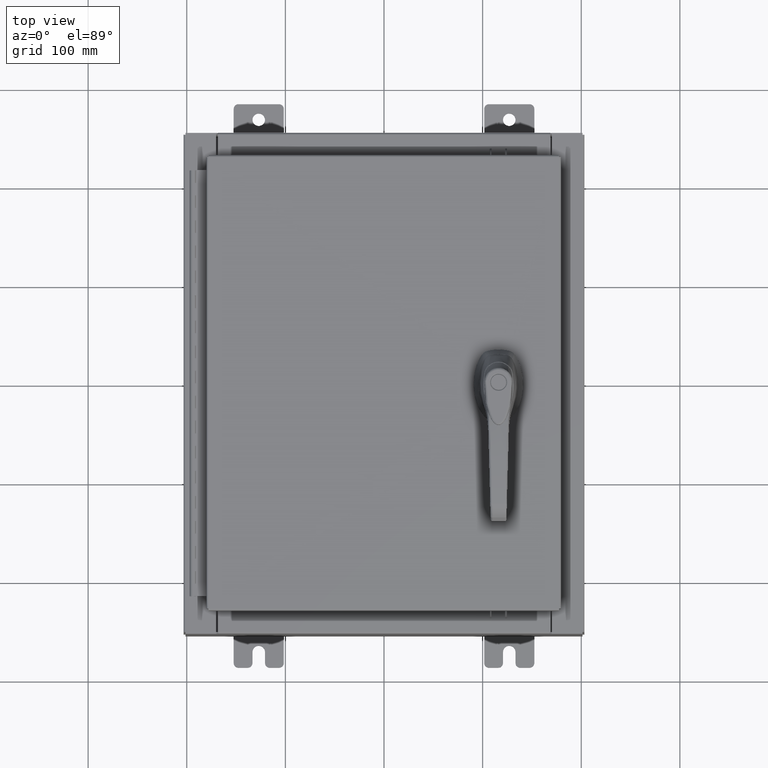
[diagram: clean part render]
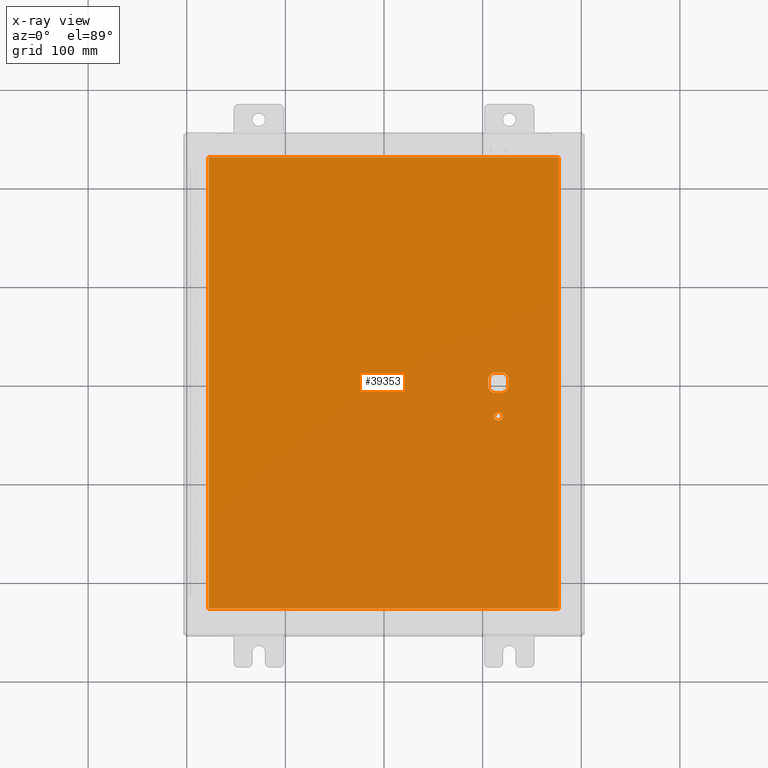
[diagram: x-ray — body ghosted, one internal face saturated and labeled with its STEP entity id]
A machine part, top view, then the same camera in x-ray: the body is ghosted and one INTERNAL B-rep face — a face not visible from any outside direction — is saturated and labeled: STEP entity #39353.
In plain terms, the highlighted planar face has unit normal (0, 0, -1).
Its self-contained STEP definition (entity closure, byte-faithful):
#25 = AXIS2_PLACEMENT_3D ( 'NONE', #109375, #58835, #8373 ) ;
#31 = DIRECTION ( 'NONE',  ( -0.0000000000000000000, -0.0000000000000000000, 1.000000000000000000 ) ) ;
#948 = ORIENTED_EDGE ( 'NONE', *, *, #71537, .F. ) ;
#1440 = CARTESIAN_POINT ( 'NONE',  ( 6.990300000000002200, -9.006299999999997800, -0.07470000000000021100 ) ) ;
#2745 = CARTESIAN_POINT ( 'NONE',  ( 4.578000000000002100, -1.338000000000000100, -0.07470000000000003000 ) ) ;
#2908 = DIRECTION ( 'NONE',  ( -1.000000000000000000, 0.0000000000000000000, 0.0000000000000000000 ) ) ;
#3994 = DIRECTION ( 'NONE',  ( -0.0000000000000000000, -0.0000000000000000000, 1.000000000000000000 ) ) ;
#4448 = ORIENTED_EDGE ( 'NONE', *, *, #63496, .F. ) ;
#4478 = ORIENTED_EDGE ( 'NONE', *, *, #21049, .T. ) ;
#4561 = EDGE_CURVE ( 'NONE', #63269, #23840, #14006, .T. ) ;
#4667 = DIRECTION ( 'NONE',  ( 0.0000000000000000000, -1.000000000000000000, 0.0000000000000000000 ) ) ;
#5778 = CARTESIAN_POINT ( 'NONE',  ( 4.980999999999927900, 0.0000000000000000000, -0.07470000000000003000 ) ) ;
#8373 = DIRECTION ( 'NONE',  ( -1.000000000000000000, 0.0000000000000000000, 0.0000000000000000000 ) ) ;
#9836 = EDGE_CURVE ( 'NONE', #60164, #17892, #26566, .T. ) ;
#10121 = CARTESIAN_POINT ( 'NONE',  ( 4.778227370756312100, 0.4029999999999250300, -0.07470000000000003000 ) ) ;
#10459 = CIRCLE ( 'NONE', #105533, 0.4499999999999156900 ) ;
#11248 = DIRECTION ( 'NONE',  ( -1.000000000000000000, 0.0000000000000000000, 0.0000000000000000000 ) ) ;
#11379 = FACE_BOUND ( 'NONE', #97253, .T. ) ;
#11795 = VERTEX_POINT ( 'NONE', #77710 ) ;
#12466 = CARTESIAN_POINT ( 'NONE',  ( 0.0000000000000000000, -0.4029999999999252000, -0.07470000000000003000 ) ) ;
#12865 = CARTESIAN_POINT ( 'NONE',  ( 4.578000000000002100, 0.0000000000000000000, -0.07470000000000003000 ) ) ;
#12920 = CARTESIAN_POINT ( 'NONE',  ( -6.990299999999997700, 9.006299999999999500, -0.07470000000000000300 ) ) ;
#13014 = VECTOR ( 'NONE', #4667, 39.37007874015748100 ) ;
#13188 = CARTESIAN_POINT ( 'NONE',  ( 4.175000000000076200, 0.0000000000000000000, -0.07470000000000003000 ) ) ;
#14006 = CIRCLE ( 'NONE', #95366, 0.1715000000000000700 ) ;
#14302 = DIRECTION ( 'NONE',  ( 0.0000000000000000000, -1.000000000000000000, 0.0000000000000000000 ) ) ;
#15737 = EDGE_CURVE ( 'NONE', #23840, #63269, #21361, .T. ) ;
#15883 = EDGE_LOOP ( 'NONE', ( #82992, #4448, #71558, #53990 ) ) ;
#17211 = VERTEX_POINT ( 'NONE', #34427 ) ;
#17892 = VERTEX_POINT ( 'NONE', #68178 ) ;
#18622 = PLANE ( 'NONE',  #63172 ) ;
#20913 = DIRECTION ( 'NONE',  ( 1.000000000000000000, 0.0000000000000000000, 0.0000000000000000000 ) ) ;
#21049 = EDGE_CURVE ( 'NONE', #49560, #39892, #93514, .T. ) ;
#21307 = DIRECTION ( 'NONE',  ( -1.000000000000000000, 8.881784197001256300E-016, 0.0000000000000000000 ) ) ;
#21357 = CARTESIAN_POINT ( 'NONE',  ( -6.990299999999997700, 9.006300000000001300, -0.07470000000000019700 ) ) ;
#21361 = CIRCLE ( 'NONE', #91790, 0.1715000000000000700 ) ;
#21535 = CIRCLE ( 'NONE', #49913, 0.4499999999999156900 ) ;
#23840 = VERTEX_POINT ( 'NONE', #63199 ) ;
#24489 = VECTOR ( 'NONE', #80342, 39.37007874015748100 ) ;
#26220 = VECTOR ( 'NONE', #2908, 39.37007874015748100 ) ;
#26566 = CIRCLE ( 'NONE', #60901, 0.4499999999999156900 ) ;
#26712 = CARTESIAN_POINT ( 'NONE',  ( 0.0000000000000000000, 0.0000000000000000000, -0.07470000000000000300 ) ) ;
#28359 = CARTESIAN_POINT ( 'NONE',  ( 0.0000000000000000000, 0.4029999999999252000, -0.07470000000000003000 ) ) ;
#29291 = CARTESIAN_POINT ( 'NONE',  ( 4.980999999999927900, -0.2002273707563080300, -0.07470000000000003000 ) ) ;
#33087 = EDGE_CURVE ( 'NONE', #17211, #67445, #59293, .T. ) ;
#33844 = VECTOR ( 'NONE', #20913, 39.37007874015748100 ) ;
#34427 = CARTESIAN_POINT ( 'NONE',  ( 4.778227370756312100, -0.4029999999999252000, -0.07470000000000003000 ) ) ;
#34883 = EDGE_CURVE ( 'NONE', #68108, #11795, #49880, .T. ) ;
#35378 = LINE ( 'NONE', #13188, #13014 ) ;
#36594 = CARTESIAN_POINT ( 'NONE',  ( -6.990299999999997700, -9.006299999999997800, -0.07470000000000021100 ) ) ;
#37141 = CARTESIAN_POINT ( 'NONE',  ( 4.377772629243692900, 0.4029999999999252000, -0.07470000000000003000 ) ) ;
#38463 = EDGE_CURVE ( 'NONE', #17892, #17211, #95902, .T. ) ;
#39353 = ADVANCED_FACE ( 'NONE', ( #101042, #56135, #11379 ), #18622, .T. ) ;
#39892 = VERTEX_POINT ( 'NONE', #37141 ) ;
#41963 = LINE ( 'NONE', #5778, #44637 ) ;
#42551 = CARTESIAN_POINT ( 'NONE',  ( 4.578000000000002100, -1.338000000000000100, -0.07470000000000003000 ) ) ;
#43857 = ORIENTED_EDGE ( 'NONE', *, *, #9836, .T. ) ;
#44032 = DIRECTION ( 'NONE',  ( 0.0000000000000000000, 0.0000000000000000000, -1.000000000000000000 ) ) ;
#44637 = VECTOR ( 'NONE', #14302, 39.37007874015748100 ) ;
#44645 = VECTOR ( 'NONE', #68875, 39.37007874015748100 ) ;
#46807 = ORIENTED_EDGE ( 'NONE', *, *, #4561, .T. ) ;
#47346 = VERTEX_POINT ( 'NONE', #12920 ) ;
#49180 = CARTESIAN_POINT ( 'NONE',  ( 4.175000000000076200, -0.2002273707563079800, -0.07470000000000003000 ) ) ;
#49560 = VERTEX_POINT ( 'NONE', #10121 ) ;
#49880 = LINE ( 'NONE', #1440, #44645 ) ;
#49913 = AXIS2_PLACEMENT_3D ( 'NONE', #50509, #31, #58996 ) ;
#50509 = CARTESIAN_POINT ( 'NONE',  ( 4.578000000000002100, 0.0000000000000000000, -0.07470000000000003000 ) ) ;
#50926 = CARTESIAN_POINT ( 'NONE',  ( 4.749500000000002100, -1.338000000000000100, -0.07470000000000003000 ) ) ;
#50993 = DIRECTION ( 'NONE',  ( -1.000000000000000000, 0.0000000000000000000, 0.0000000000000000000 ) ) ;
#53990 = ORIENTED_EDGE ( 'NONE', *, *, #108332, .F. ) ;
#54410 = ORIENTED_EDGE ( 'NONE', *, *, #59389, .T. ) ;
#54454 = CARTESIAN_POINT ( 'NONE',  ( 4.578000000000002100, 0.0000000000000000000, -0.07470000000000003000 ) ) ;
#56106 = ORIENTED_EDGE ( 'NONE', *, *, #33087, .T. ) ;
#56135 = FACE_OUTER_BOUND ( 'NONE', #15883, .T. ) ;
#57035 = ORIENTED_EDGE ( 'NONE', *, *, #92222, .T. ) ;
#58835 = DIRECTION ( 'NONE',  ( -0.0000000000000000000, -0.0000000000000000000, 1.000000000000000000 ) ) ;
#58996 = DIRECTION ( 'NONE',  ( -1.000000000000000000, 0.0000000000000000000, 0.0000000000000000000 ) ) ;
#59293 = CIRCLE ( 'NONE', #25, 0.4499999999999156900 ) ;
#59389 = EDGE_CURVE ( 'NONE', #39892, #72153, #21535, .T. ) ;
#60164 = VERTEX_POINT ( 'NONE', #49180 ) ;
#60244 = EDGE_LOOP ( 'NONE', ( #46807, #79972 ) ) ;
#60901 = AXIS2_PLACEMENT_3D ( 'NONE', #12865, #71777, #21307 ) ;
#61704 = DIRECTION ( 'NONE',  ( -0.0000000000000000000, -0.0000000000000000000, 1.000000000000000000 ) ) ;
#61920 = VECTOR ( 'NONE', #78613, 39.37007874015748100 ) ;
#62638 = LINE ( 'NONE', #77837, #82422 ) ;
#62939 = DIRECTION ( 'NONE',  ( -1.000000000000000000, 0.0000000000000000000, 0.0000000000000000000 ) ) ;
#63172 = AXIS2_PLACEMENT_3D ( 'NONE', #26712, #44032, #102999 ) ;
#63199 = CARTESIAN_POINT ( 'NONE',  ( 4.406500000000002100, -1.338000000000000100, -0.07470000000000003000 ) ) ;
#63269 = VERTEX_POINT ( 'NONE', #50926 ) ;
#63496 = EDGE_CURVE ( 'NONE', #107377, #68108, #89671, .T. ) ;
#67445 = VERTEX_POINT ( 'NONE', #29291 ) ;
#68108 = VERTEX_POINT ( 'NONE', #105439 ) ;
#68178 = CARTESIAN_POINT ( 'NONE',  ( 4.377772629243692900, -0.4029999999999250300, -0.07470000000000003000 ) ) ;
#68875 = DIRECTION ( 'NONE',  ( 0.0000000000000000000, 1.000000000000000000, 0.0000000000000000000 ) ) ;
#71537 = EDGE_CURVE ( 'NONE', #105053, #67445, #41963, .T. ) ;
#71558 = ORIENTED_EDGE ( 'NONE', *, *, #96350, .F. ) ;
#71777 = DIRECTION ( 'NONE',  ( -0.0000000000000000000, -0.0000000000000000000, 1.000000000000000000 ) ) ;
#72153 = VERTEX_POINT ( 'NONE', #82690 ) ;
#74386 = ORIENTED_EDGE ( 'NONE', *, *, #38463, .T. ) ;
#77710 = CARTESIAN_POINT ( 'NONE',  ( 6.990300000000001300, 9.006300000000001300, -0.07470000000000000300 ) ) ;
#77837 = CARTESIAN_POINT ( 'NONE',  ( 6.990300000000002200, 9.006300000000001300, -0.07470000000000076600 ) ) ;
#78613 = DIRECTION ( 'NONE',  ( 1.000000000000000000, -0.0000000000000000000, -0.0000000000000000000 ) ) ;
#79972 = ORIENTED_EDGE ( 'NONE', *, *, #15737, .T. ) ;
#80342 = DIRECTION ( 'NONE',  ( 0.0000000000000000000, -1.000000000000000000, 0.0000000000000000000 ) ) ;
#82422 = VECTOR ( 'NONE', #94814, 39.37007874015748100 ) ;
#82690 = CARTESIAN_POINT ( 'NONE',  ( 4.175000000000076200, 0.2002273707563080300, -0.07470000000000003000 ) ) ;
#82992 = ORIENTED_EDGE ( 'NONE', *, *, #34883, .F. ) ;
#89181 = LINE ( 'NONE', #21357, #24489 ) ;
#89671 = LINE ( 'NONE', #36594, #61920 ) ;
#91790 = AXIS2_PLACEMENT_3D ( 'NONE', #2745, #61704, #11248 ) ;
#92222 = EDGE_CURVE ( 'NONE', #72153, #60164, #35378, .T. ) ;
#93514 = LINE ( 'NONE', #28359, #26220 ) ;
#94814 = DIRECTION ( 'NONE',  ( -1.000000000000000000, -0.0000000000000000000, -0.0000000000000000000 ) ) ;
#95366 = AXIS2_PLACEMENT_3D ( 'NONE', #42551, #101544, #50993 ) ;
#95902 = LINE ( 'NONE', #12466, #33844 ) ;
#96350 = EDGE_CURVE ( 'NONE', #47346, #107377, #89181, .T. ) ;
#97253 = EDGE_LOOP ( 'NONE', ( #56106, #948, #101054, #4478, #54410, #57035, #43857, #74386 ) ) ;
#98958 = CARTESIAN_POINT ( 'NONE',  ( 4.980999999999927900, 0.2002273707563080300, -0.07470000000000003000 ) ) ;
#99257 = CARTESIAN_POINT ( 'NONE',  ( -6.990299999999996800, -9.006299999999997800, -0.07470000000000000300 ) ) ;
#101042 = FACE_BOUND ( 'NONE', #60244, .T. ) ;
#101054 = ORIENTED_EDGE ( 'NONE', *, *, #104323, .T. ) ;
#101544 = DIRECTION ( 'NONE',  ( -0.0000000000000000000, -0.0000000000000000000, 1.000000000000000000 ) ) ;
#102999 = DIRECTION ( 'NONE',  ( -1.000000000000000000, 0.0000000000000000000, -0.0000000000000000000 ) ) ;
#104323 = EDGE_CURVE ( 'NONE', #105053, #49560, #10459, .T. ) ;
#105053 = VERTEX_POINT ( 'NONE', #98958 ) ;
#105439 = CARTESIAN_POINT ( 'NONE',  ( 6.990300000000002200, -9.006299999999997800, -0.07470000000000000300 ) ) ;
#105533 = AXIS2_PLACEMENT_3D ( 'NONE', #54454, #3994, #62939 ) ;
#107377 = VERTEX_POINT ( 'NONE', #99257 ) ;
#108332 = EDGE_CURVE ( 'NONE', #11795, #47346, #62638, .T. ) ;
#109375 = CARTESIAN_POINT ( 'NONE',  ( 4.578000000000002100, 0.0000000000000000000, -0.07470000000000003000 ) ) ;